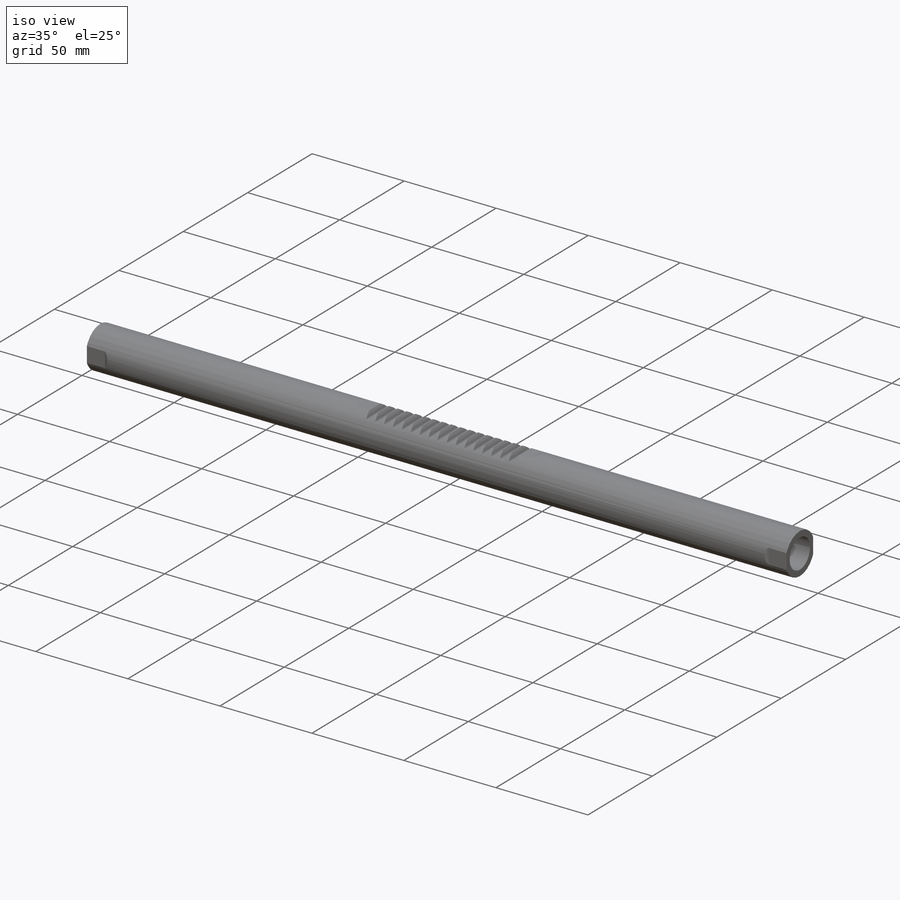
[diagram: iso view]
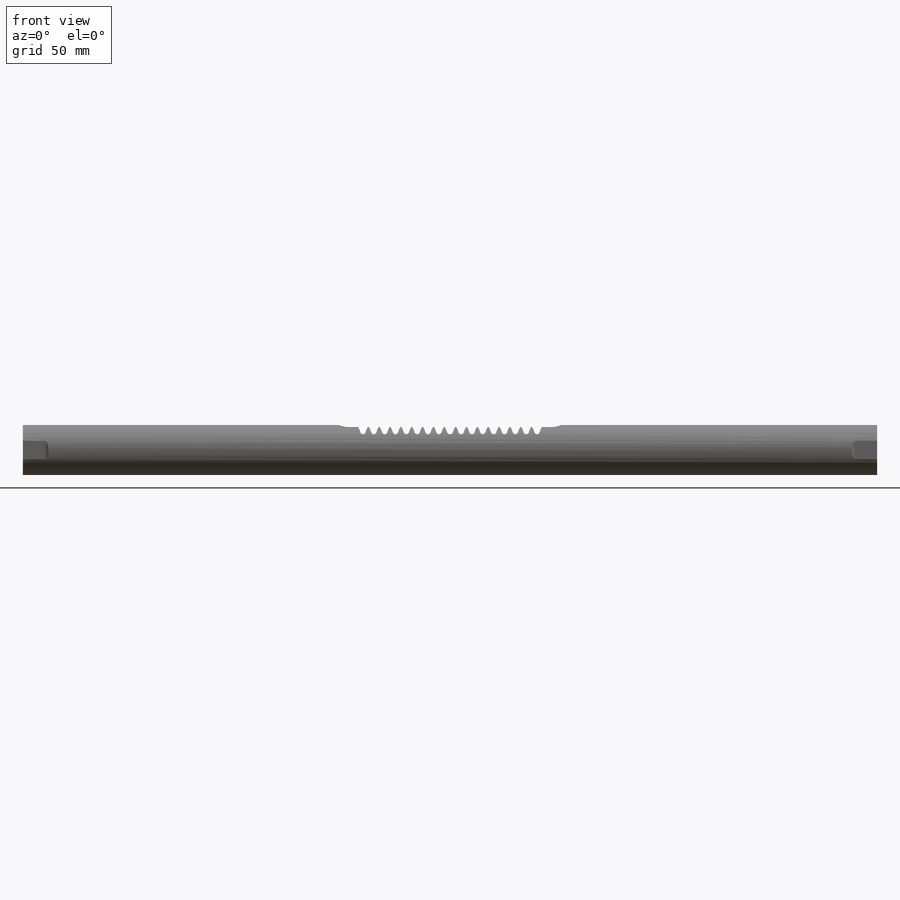
[diagram: front view]
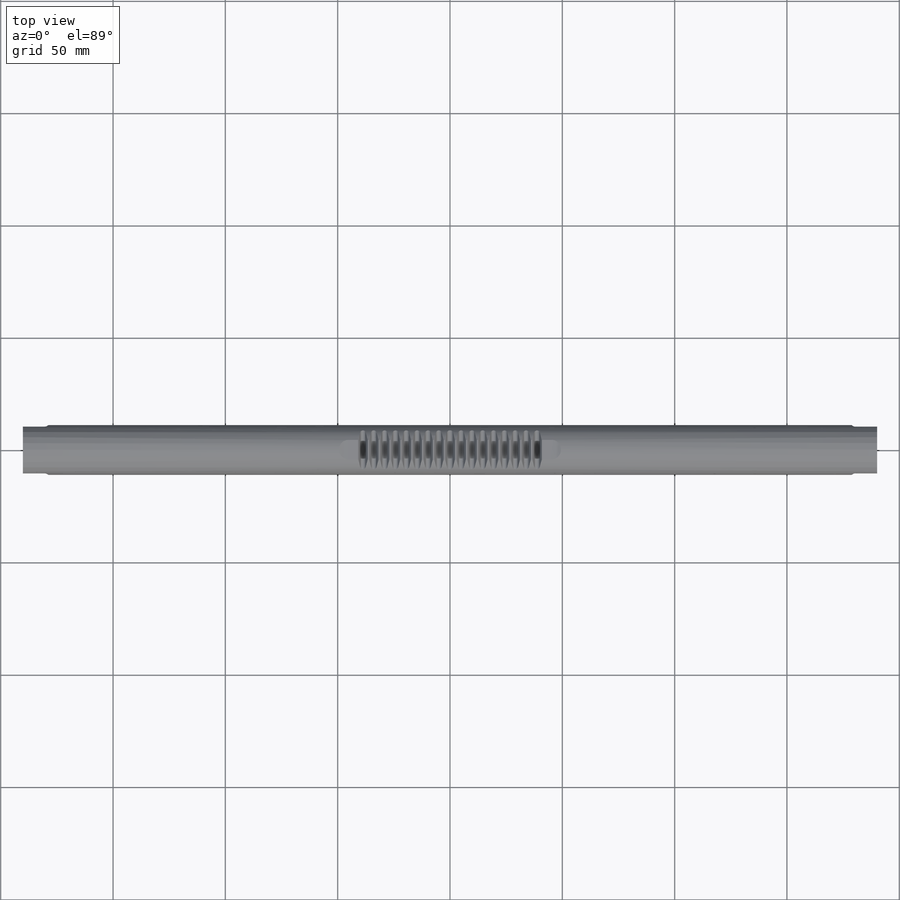
[diagram: top view]
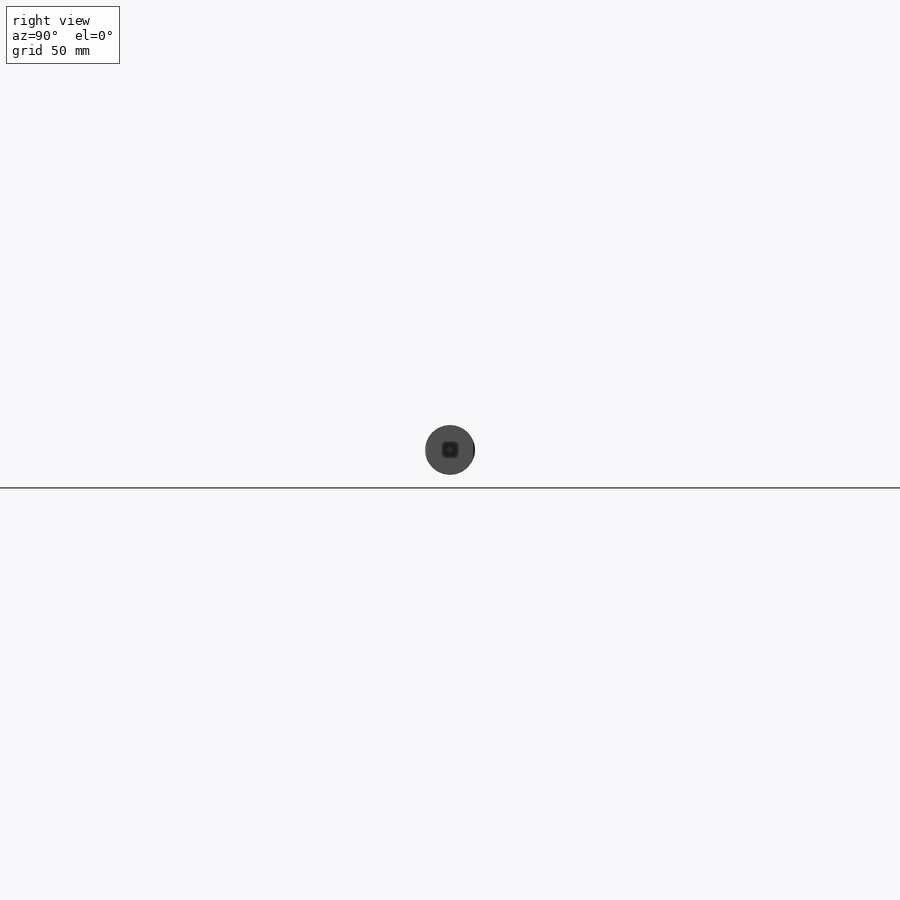
[diagram: right view]
SOLIDWORKS PART (.sldprt)
format: sldprt  version: not decoded by parser v0  size: 985,600 bytes
history: native  units: mm
features: sketch x5, cut_extrude x4, extrude x3, mirror x2, material x1 (+11 scaffold rows collapsed)
feature tree (26):
  scaffold x11  (default folders/planes/origin — collapsed)
  material  "Alloy Steel"
  sketch  "Sketch1"  dims[D1=22.225mm]
  extrude  "Boss-Extrude1"  Depth=380.238mm
  sketch  "Sketch2"
  extrude  "Sketch Picture2"  Depth=10.403805mm ModelUUID=255
  cut_extrude  "Cut-Extrude1"  [1 undecoded]
  sketch  "Sketch4"
  extrude  "Sketch Picture3"  Depth=2.54mm
  cut_extrude  "Cut-Extrude3"  [1 undecoded]
  cut_extrude  "Cut-Extrude4"  [1 undecoded]
  sketch  "Sketch4<6>"
  mirror  "Mirror1"
  sketch  "Sketch5"  dims[D1=15.875mm]
  cut_extrude  "Cut-Extrude6"  Depth=50.8mm
  mirror  "Mirror2"
decode coverage: 6 of 14 modeling features carry decoded parameters
note: 3 parameter values undecoded
summary: no parameter record found for 3 features
note: suppression state not decoded; provenance and decode notes live in map.json
